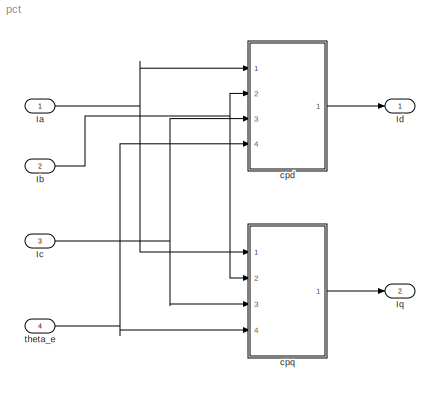
MODEL pct
KIND model
BLOCK [Inport] Ia
  IconDisplay = Port number
  SID = 48
BLOCK [Inport] Ib
  IconDisplay = Port number
  Port = 2
  SID = 50
BLOCK [Inport] Ic
  IconDisplay = Port number
  Port = 3
  SID = 51
BLOCK [Outport] Id
  IconDisplay = Port number
  SID = 49
BLOCK [Outport] Iq
  IconDisplay = Port number
  Port = 2
  SID = 53
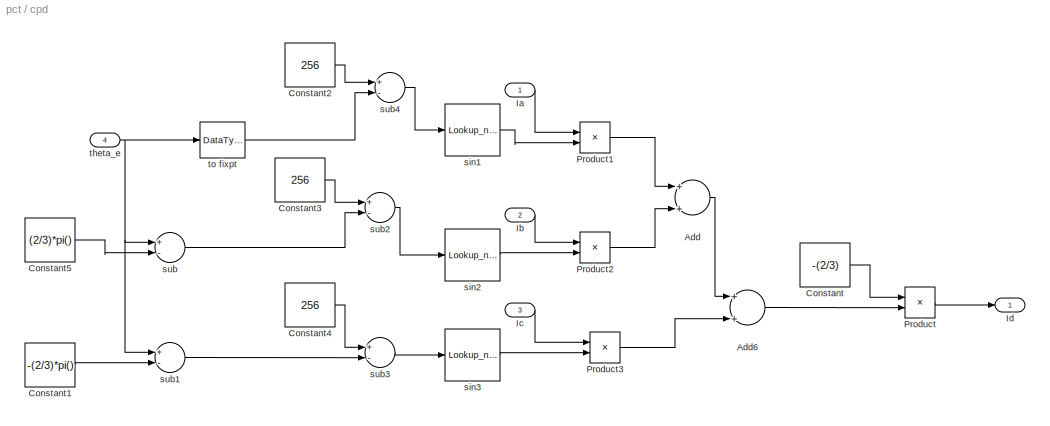
BLOCK [SubSystem] cpd
  Ports = [4, 1]
  RequestExecContextInheritance = off
  SID = 54
BLOCK [Sum] cpd/Add
  AccumDataTypeStr = fixdt(1,64,43)
  InputSameDT = off
  OutDataTypeStr = fixdt(1,64,43)
  Ports = [2, 1]
  SID = 59
  SaturateOnIntegerOverflow = off
BLOCK [Sum] cpd/Add6
  AccumDataTypeStr = fixdt(1,64,43)
  InputSameDT = off
  OutDataTypeStr = fixdt(1,64,43)
  Ports = [2, 1]
  SID = 174
  SaturateOnIntegerOverflow = off
BLOCK [Constant] cpd/Constant
  OutDataTypeStr = Inherit: Inherit via back propagation
  SID = 62
  Value = -(2/3)
BLOCK [Constant] cpd/Constant1
  OutDataTypeStr = Inherit: Inherit via back propagation
  SID = 63
  Value = -(2/3)*pi()
BLOCK [Constant] cpd/Constant2
  OutDataTypeStr = Inherit: Inherit via back propagation
  SID = 168
  Value = 256
BLOCK [Constant] cpd/Constant3
  OutDataTypeStr = Inherit: Inherit via back propagation
  SID = 169
  Value = 256
BLOCK [Constant] cpd/Constant4
  OutDataTypeStr = Inherit: Inherit via back propagation
  SID = 170
  Value = 256
BLOCK [Constant] cpd/Constant5
  OutDataTypeStr = Inherit: Inherit via back propagation
  SID = 972
  Value = (2/3)*pi()
BLOCK [Inport] cpd/Ia
  IconDisplay = Port number
  SID = 55
BLOCK [Inport] cpd/Ib
  IconDisplay = Port number
  Port = 2
  SID = 56
BLOCK [Inport] cpd/Ic
  IconDisplay = Port number
  Port = 3
  SID = 57
BLOCK [Outport] cpd/Id
  IconDisplay = Port number
  SID = 71
BLOCK [Product] cpd/Product
  InputSameDT = off
  OutDataTypeStr = fixdt(1,48,43)
  Ports = [2, 1]
  SID = 64
  SaturateOnIntegerOverflow = off
BLOCK [Product] cpd/Product1
  InputSameDT = off
  OutDataTypeStr = fixdt(1,48,43)
  Ports = [2, 1]
  SID = 65
  SaturateOnIntegerOverflow = off
BLOCK [Product] cpd/Product2
  InputSameDT = off
  OutDataTypeStr = fixdt(1,48,43)
  Ports = [2, 1]
  SID = 66
  SaturateOnIntegerOverflow = off
BLOCK [Product] cpd/Product3
  InputSameDT = off
  OutDataTypeStr = fixdt(1,48,43)
  Ports = [2, 1]
  SID = 67
  SaturateOnIntegerOverflow = off
BLOCK [Lookup_n-D] cpd/sin1
  BeginIndexSearchUsingPreviousIndexResult = on
  BreakpointsForDimension1 = [0:1024]
  DiagnosticForOutOfRangeInput = Warning
  ExtrapMethod = Clip
  IndexSearchMethod = Evenly spaced points
  NumberOfTableDimensions = 1
  OutDataTypeStr = fixdt(1,16,15)
  Ports = [1, 1]
  RemoveProtectionInput = on
  SID = 568
  Table = sin((0:1024))'
  UseLastTableValue = on
BLOCK [Lookup_n-D] cpd/sin2
  BeginIndexSearchUsingPreviousIndexResult = on
  BreakpointsForDimension1 = [0:1024]
  DiagnosticForOutOfRangeInput = Warning
  ExtrapMethod = Clip
  IndexSearchMethod = Evenly spaced points
  NumberOfTableDimensions = 1
  OutDataTypeStr = fixdt(1,16,15)
  Ports = [1, 1]
  RemoveProtectionInput = on
  SID = 569
  Table = sin((0:1024))'
  UseLastTableValue = on
BLOCK [Lookup_n-D] cpd/sin3
  BeginIndexSearchUsingPreviousIndexResult = on
  BreakpointsForDimension1 = [0:1024]
  DiagnosticForOutOfRangeInput = Warning
  ExtrapMethod = Clip
  IndexSearchMethod = Evenly spaced points
  NumberOfTableDimensions = 1
  OutDataTypeStr = fixdt(1,16,15)
  Ports = [1, 1]
  RemoveProtectionInput = on
  SID = 570
  Table = sin((0:1024))'
  UseLastTableValue = on
BLOCK [Sum] cpd/sub
  AccumDataTypeStr = fixdt(1,32,16)
  InputSameDT = off
  Inputs = +-
  OutDataTypeStr = fixdt(1,32,16)
  Ports = [2, 1]
  SID = 973
  SaturateOnIntegerOverflow = off
BLOCK [Sum] cpd/sub1
  AccumDataTypeStr = fixdt(1,32,16)
  InputSameDT = off
  Inputs = +-
  OutDataTypeStr = fixdt(1,32,16)
  Ports = [2, 1]
  SID = 61
  SaturateOnIntegerOverflow = off
BLOCK [Sum] cpd/sub2
  AccumDataTypeStr = fixdt(1,32,16)
  InputSameDT = off
  Inputs = +-
  OutDataTypeStr = fixdt(1,32,16)
  Ports = [2, 1]
  SID = 172
  SaturateOnIntegerOverflow = off
BLOCK [Sum] cpd/sub3
  AccumDataTypeStr = fixdt(1,32,16)
  InputSameDT = off
  Inputs = +-
  OutDataTypeStr = fixdt(1,32,16)
  Ports = [2, 1]
  SID = 173
  SaturateOnIntegerOverflow = off
BLOCK [Sum] cpd/sub4
  AccumDataTypeStr = fixdt(1,32,16)
  InputSameDT = off
  Inputs = +-
  OutDataTypeStr = fixdt(1,32,16)
  Ports = [2, 1]
  SID = 171
  SaturateOnIntegerOverflow = off
BLOCK [Inport] cpd/theta_e
  IconDisplay = Port number
  Port = 4
  SID = 58
BLOCK [DataTypeConversion] cpd/to fixpt 
  OutDataTypeStr = fixdt(1,32,16)
  RndMeth = Floor
  SID = 98
  SaturateOnIntegerOverflow = off
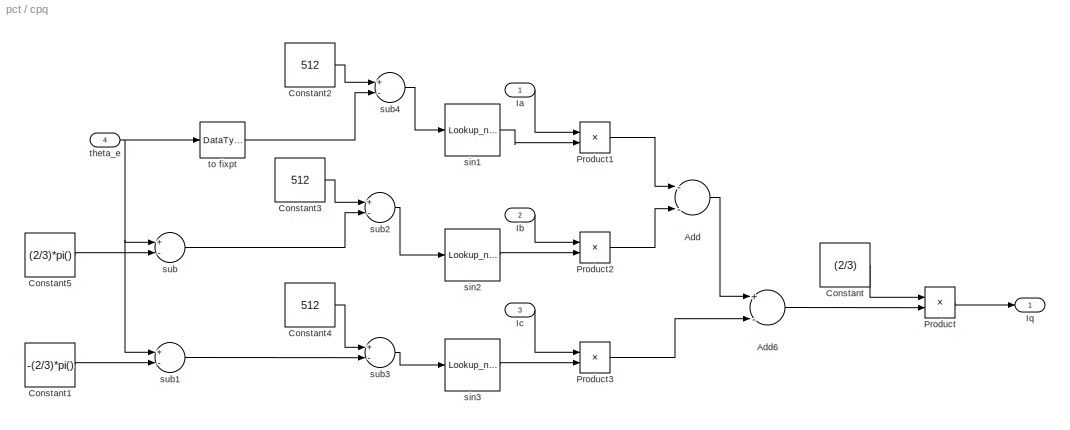
BLOCK [SubSystem] cpq
  Ports = [4, 1]
  RequestExecContextInheritance = off
  SID = 72
BLOCK [Sum] cpq/Add
  AccumDataTypeStr = fixdt(1,64,43)
  InputSameDT = off
  Inputs = --
  OutDataTypeStr = fixdt(1,64,43)
  Ports = [2, 1]
  SID = 980
  SaturateOnIntegerOverflow = off
BLOCK [Sum] cpq/Add6
  AccumDataTypeStr = fixdt(1,64,43)
  InputSameDT = off
  Inputs = +-
  OutDataTypeStr = fixdt(1,64,43)
  Ports = [2, 1]
  SID = 982
  SaturateOnIntegerOverflow = off
BLOCK [Constant] cpq/Constant
  OutDataTypeStr = Inherit: Inherit via back propagation
  SID = 983
  Value = (2/3)
BLOCK [Constant] cpq/Constant1
  OutDataTypeStr = Inherit: Inherit via back propagation
  SID = 984
  Value = -(2/3)*pi()
BLOCK [Constant] cpq/Constant2
  OutDataTypeStr = Inherit: Inherit via back propagation
  SID = 985
  Value = 512
BLOCK [Constant] cpq/Constant3
  OutDataTypeStr = Inherit: Inherit via back propagation
  SID = 986
  Value = 512
BLOCK [Constant] cpq/Constant4
  OutDataTypeStr = Inherit: Inherit via back propagation
  SID = 987
  Value = 512
BLOCK [Constant] cpq/Constant5
  OutDataTypeStr = Inherit: Inherit via back propagation
  SID = 988
  Value = (2/3)*pi()
BLOCK [Inport] cpq/Ia
  IconDisplay = Port number
  SID = 976
BLOCK [Inport] cpq/Ib
  IconDisplay = Port number
  Port = 2
  SID = 977
BLOCK [Inport] cpq/Ic
  IconDisplay = Port number
  Port = 3
  SID = 978
BLOCK [Outport] cpq/Iq
  IconDisplay = Port number
  SID = 1001
BLOCK [Product] cpq/Product
  InputSameDT = off
  OutDataTypeStr = fixdt(1,48,43)
  Ports = [2, 1]
  SID = 989
  SaturateOnIntegerOverflow = off
BLOCK [Product] cpq/Product1
  InputSameDT = off
  OutDataTypeStr = fixdt(1,48,43)
  Ports = [2, 1]
  SID = 990
  SaturateOnIntegerOverflow = off
BLOCK [Product] cpq/Product2
  InputSameDT = off
  OutDataTypeStr = fixdt(1,48,43)
  Ports = [2, 1]
  SID = 991
  SaturateOnIntegerOverflow = off
BLOCK [Product] cpq/Product3
  InputSameDT = off
  OutDataTypeStr = fixdt(1,48,43)
  Ports = [2, 1]
  SID = 992
  SaturateOnIntegerOverflow = off
BLOCK [Lookup_n-D] cpq/sin1
  BeginIndexSearchUsingPreviousIndexResult = on
  BreakpointsForDimension1 = [0:1024]
  DiagnosticForOutOfRangeInput = Warning
  ExtrapMethod = Clip
  IndexSearchMethod = Evenly spaced points
  NumberOfTableDimensions = 1
  OutDataTypeStr = fixdt(1,16,15)
  Ports = [1, 1]
  RemoveProtectionInput = on
  SID = 993
  Table = sin((0:1024))'
  UseLastTableValue = on
BLOCK [Lookup_n-D] cpq/sin2
  BeginIndexSearchUsingPreviousIndexResult = on
  BreakpointsForDimension1 = [0:1024]
  DiagnosticForOutOfRangeInput = Warning
  ExtrapMethod = Clip
  IndexSearchMethod = Evenly spaced points
  NumberOfTableDimensions = 1
  OutDataTypeStr = fixdt(1,16,15)
  Ports = [1, 1]
  RemoveProtectionInput = on
  SID = 994
  Table = sin((0:1024))'
  UseLastTableValue = on
BLOCK [Lookup_n-D] cpq/sin3
  BeginIndexSearchUsingPreviousIndexResult = on
  BreakpointsForDimension1 = [0:1024]
  DiagnosticForOutOfRangeInput = Warning
  ExtrapMethod = Clip
  IndexSearchMethod = Evenly spaced points
  NumberOfTableDimensions = 1
  OutDataTypeStr = fixdt(1,16,15)
  Ports = [1, 1]
  RemoveProtectionInput = on
  SID = 995
  Table = sin((0:1024))'
  UseLastTableValue = on
BLOCK [Sum] cpq/sub
  AccumDataTypeStr = fixdt(1,32,16)
  InputSameDT = off
  Inputs = +-
  OutDataTypeStr = fixdt(1,32,16)
  Ports = [2, 1]
  SID = 996
  SaturateOnIntegerOverflow = off
BLOCK [Sum] cpq/sub1
  AccumDataTypeStr = fixdt(1,32,16)
  InputSameDT = off
  Inputs = +-
  OutDataTypeStr = fixdt(1,32,16)
  Ports = [2, 1]
  SID = 997
  SaturateOnIntegerOverflow = off
BLOCK [Sum] cpq/sub2
  AccumDataTypeStr = fixdt(1,32,16)
  InputSameDT = off
  Inputs = +-
  OutDataTypeStr = fixdt(1,32,16)
  Ports = [2, 1]
  SID = 998
  SaturateOnIntegerOverflow = off
BLOCK [Sum] cpq/sub3
  AccumDataTypeStr = fixdt(1,32,16)
  InputSameDT = off
  Inputs = +-
  OutDataTypeStr = fixdt(1,32,16)
  Ports = [2, 1]
  SID = 999
  SaturateOnIntegerOverflow = off
BLOCK [Sum] cpq/sub4
  AccumDataTypeStr = fixdt(1,32,16)
  InputSameDT = off
  Inputs = +-
  OutDataTypeStr = fixdt(1,32,16)
  Ports = [2, 1]
  SID = 981
  SaturateOnIntegerOverflow = off
BLOCK [Inport] cpq/theta_e
  IconDisplay = Port number
  Port = 4
  SID = 979
BLOCK [DataTypeConversion] cpq/to fixpt 
  OutDataTypeStr = fixdt(1,32,16)
  RndMeth = Floor
  SID = 1000
  SaturateOnIntegerOverflow = off
BLOCK [Inport] theta_e
  IconDisplay = Port number
  Port = 4
  SID = 52
NET Ia:1 -> cpd:1, cpq:1
NET Ib:1 -> cpd:2, cpq:2
NET Ic:1 -> cpd:3, cpq:3
LINE cpd/Add6:1 -> cpd/Product:2
LINE cpd/Add:1 -> cpd/Add6:1
LINE cpd/Constant1:1 -> cpd/sub1:2
LINE cpd/Constant2:1 -> cpd/sub4:1
LINE cpd/Constant3:1 -> cpd/sub2:1
LINE cpd/Constant4:1 -> cpd/sub3:1
LINE cpd/Constant5:1 -> cpd/sub:2
LINE cpd/Constant:1 -> cpd/Product:1
LINE cpd/Ia:1 -> cpd/Product1:1
LINE cpd/Ib:1 -> cpd/Product2:1
LINE cpd/Ic:1 -> cpd/Product3:1
LINE cpd/Product1:1 -> cpd/Add:1
LINE cpd/Product2:1 -> cpd/Add:2
LINE cpd/Product3:1 -> cpd/Add6:2
LINE cpd/Product:1 -> cpd/Id:1
LINE cpd/sin1:1 -> cpd/Product1:2
LINE cpd/sin2:1 -> cpd/Product2:2
LINE cpd/sin3:1 -> cpd/Product3:2
LINE cpd/sub1:1 -> cpd/sub3:2
LINE cpd/sub2:1 -> cpd/sin2:1
LINE cpd/sub3:1 -> cpd/sin3:1
LINE cpd/sub4:1 -> cpd/sin1:1
LINE cpd/sub:1 -> cpd/sub2:2
NET cpd/theta_e:1 -> cpd/sub1:1, cpd/sub:1, cpd/to fixpt :1
LINE cpd/to fixpt :1 -> cpd/sub4:2
LINE cpd:1 -> Id:1
LINE cpq/Add6:1 -> cpq/Product:2
LINE cpq/Add:1 -> cpq/Add6:1
LINE cpq/Constant1:1 -> cpq/sub1:2
LINE cpq/Constant2:1 -> cpq/sub4:1
LINE cpq/Constant3:1 -> cpq/sub2:1
LINE cpq/Constant4:1 -> cpq/sub3:1
LINE cpq/Constant5:1 -> cpq/sub:2
LINE cpq/Constant:1 -> cpq/Product:1
LINE cpq/Ia:1 -> cpq/Product1:1
LINE cpq/Ib:1 -> cpq/Product2:1
LINE cpq/Ic:1 -> cpq/Product3:1
LINE cpq/Product1:1 -> cpq/Add:1
LINE cpq/Product2:1 -> cpq/Add:2
LINE cpq/Product3:1 -> cpq/Add6:2
LINE cpq/Product:1 -> cpq/Iq:1
LINE cpq/sin1:1 -> cpq/Product1:2
LINE cpq/sin2:1 -> cpq/Product2:2
LINE cpq/sin3:1 -> cpq/Product3:2
LINE cpq/sub1:1 -> cpq/sub3:2
LINE cpq/sub2:1 -> cpq/sin2:1
LINE cpq/sub3:1 -> cpq/sin3:1
LINE cpq/sub4:1 -> cpq/sin1:1
LINE cpq/sub:1 -> cpq/sub2:2
NET cpq/theta_e:1 -> cpq/sub1:1, cpq/sub:1, cpq/to fixpt :1
LINE cpq/to fixpt :1 -> cpq/sub4:2
LINE cpq:1 -> Iq:1
NET theta_e:1 -> cpd:4, cpq:4
note: NET lines group one-source signal fan-out (src -> all destinations, sorted); 1:1 wires keep LINE
